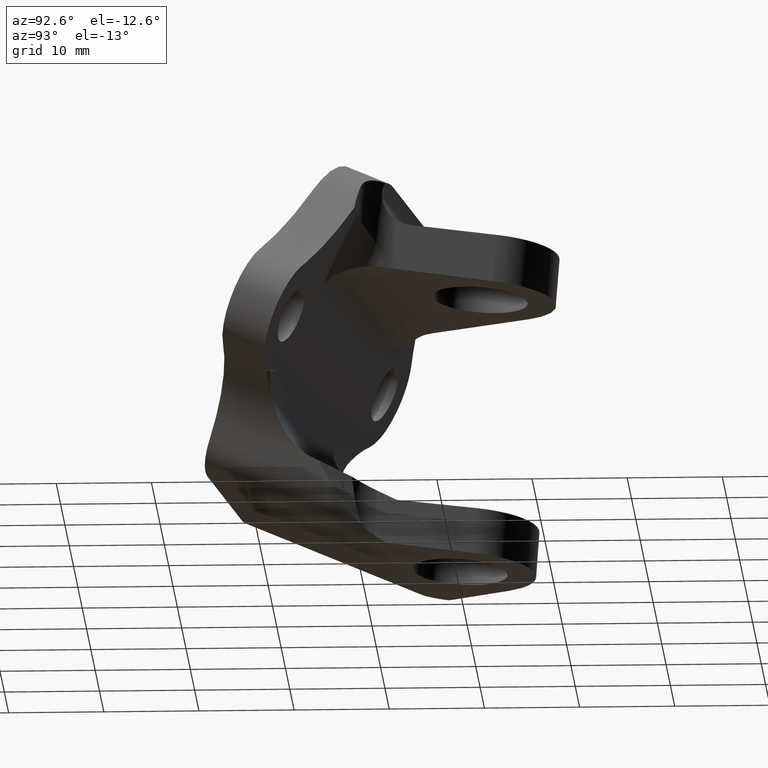
[diagram: clean part render]
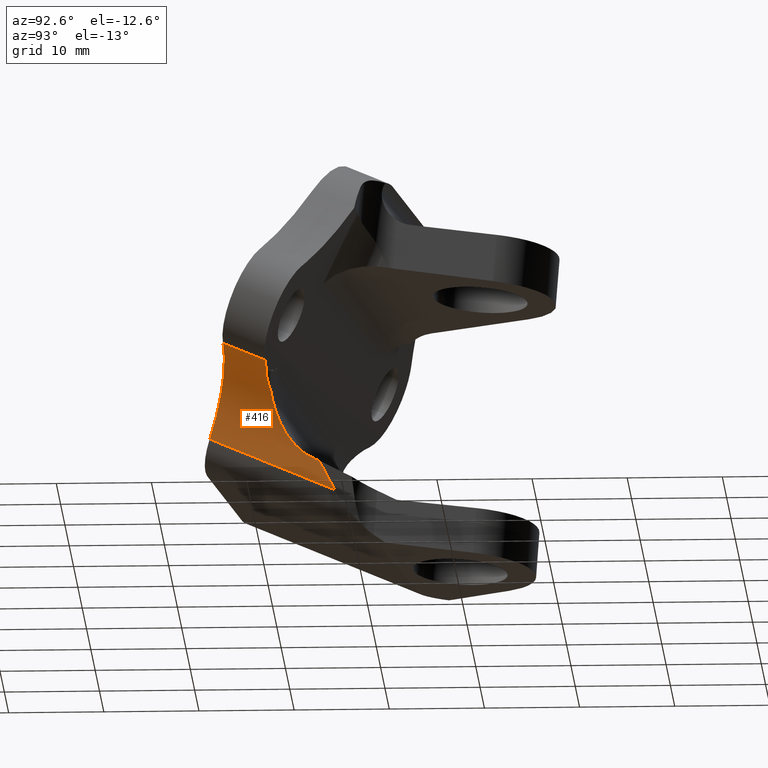
[diagram: same view with one face highlighted and labeled with its STEP entity id]
A machine part, auxiliary view. The second image highlights one B-rep face of the part: STEP entity #416.
In plain terms, the highlighted cylindrical surface (partial cylindrical patch) has radius 15 mm, axis along (0.1825, 0.8911, -0.4155).
Its self-contained STEP definition (entity closure, byte-faithful):
#275=CARTESIAN_POINT('Vertex',(1332.36588304,260.825357216,156.228339215)) ;
#279=CARTESIAN_POINT('Control Point',(1329.3760537,265.48994764,149.438484688)) ;
#280=CARTESIAN_POINT('Control Point',(1329.21356292,264.696636273,149.808428118)) ;
#281=CARTESIAN_POINT('Control Point',(1329.14381322,263.947013349,150.312791655)) ;
#282=CARTESIAN_POINT('Control Point',(1329.17418206,263.279287994,150.934856206)) ;
#283=CARTESIAN_POINT('Control Point',(1329.48861001,262.081481571,152.421390778)) ;
#284=CARTESIAN_POINT('Control Point',(1330.32094291,261.363717171,154.024214917)) ;
#285=CARTESIAN_POINT('Control Point',(1330.90699313,261.113155148,154.839696755)) ;
#286=CARTESIAN_POINT('Control Point',(1331.59673932,260.944573431,155.576214251)) ;
#287=CARTESIAN_POINT('Control Point',(1332.36588301,260.825357285,156.228339094)) ;
#288=CARTESIAN_POINT('Vertex',(1329.3760537,265.48994764,149.438484688)) ;
#343=CARTESIAN_POINT('Vertex',(1334.55410664,260.460823776,157.774104192)) ;
#347=CARTESIAN_POINT('Control Point',(1332.36588303,260.82535722,156.228339218)) ;
#348=CARTESIAN_POINT('Control Point',(1332.83092577,260.642211723,156.691522759)) ;
#349=CARTESIAN_POINT('Control Point',(1333.3563237,260.516205573,157.116427266)) ;
#350=CARTESIAN_POINT('Control Point',(1333.93778396,260.451582303,157.483578372)) ;
#351=CARTESIAN_POINT('Control Point',(1334.55410664,260.460823777,157.774104191)) ;
#360=CARTESIAN_POINT('Axis2P3D Location',(1340.51979634,254.547172637,145.306575299)) ;
#365=CARTESIAN_POINT('Line Origine',(1336.78702777,261.308259236,158.165585636)) ;
#369=CARTESIAN_POINT('Vertex',(1335.6919329,255.961794454,160.658792722)) ;
#371=CARTESIAN_POINT('Vertex',(1336.60451196,260.417181772,158.581120151)) ;
#374=CARTESIAN_POINT('Axis2P3D Location',(1339.42470147,249.200707855,147.799782384)) ;
#378=CARTESIAN_POINT('Vertex',(1326.05604809,254.126840732,152.491511471)) ;
#381=CARTESIAN_POINT('Line Origine',(1327.15114296,259.473305514,149.998304386)) ;
#385=CARTESIAN_POINT('Vertex',(1328.77460095,267.39934115,146.302170769)) ;
#389=CARTESIAN_POINT('Control Point',(1328.77460095,267.39934115,146.302170769)) ;
#390=CARTESIAN_POINT('Control Point',(1328.9814799,266.962056387,147.350785398)) ;
#391=CARTESIAN_POINT('Control Point',(1329.20604396,266.411242059,148.346191297)) ;
#392=CARTESIAN_POINT('Control Point',(1329.43881714,265.796370906,149.29559089)) ;
#393=CARTESIAN_POINT('Vertex',(1329.43881714,265.796370906,149.29559089)) ;
#396=CARTESIAN_POINT('Line Origine',(1328.28095883,260.143482859,151.931691773)) ;
#401=CARTESIAN_POINT('Axis2P3D Location',(1340.33728053,253.656095173,145.722109813)) ;
#361=DIRECTION('Axis2P3D Direction',(0.182515811719,0.891077463515,-0.415534514196)) ;
#362=DIRECTION('Axis2P3D XDirection',(-0.891243558321,0.32840885847,0.312781939104)) ;
#366=DIRECTION('Vector Direction',(0.182515811719,0.891077463515,-0.415534514196)) ;
#375=DIRECTION('Axis2P3D Direction',(0.182515811719,0.891077463515,-0.415534514196)) ;
#382=DIRECTION('Vector Direction',(0.182515811719,0.891077463515,-0.415534514196)) ;
#397=DIRECTION('Vector Direction',(0.182515811719,0.891077463515,-0.415534514196)) ;
#402=DIRECTION('Axis2P3D Direction',(0.182515811719,0.891077463515,-0.415534514196)) ;
#363=AXIS2_PLACEMENT_3D('Cylinder Axis2P3D',#360,#361,#362) ;
#376=AXIS2_PLACEMENT_3D('Circle Axis2P3D',#374,#375,$) ;
#403=AXIS2_PLACEMENT_3D('Circle Axis2P3D',#401,#402,$) ;
#407=ORIENTED_EDGE('',*,*,#373,.F.) ;
#408=ORIENTED_EDGE('',*,*,#380,.F.) ;
#409=ORIENTED_EDGE('',*,*,#387,.T.) ;
#410=ORIENTED_EDGE('',*,*,#395,.T.) ;
#411=ORIENTED_EDGE('',*,*,#400,.F.) ;
#412=ORIENTED_EDGE('',*,*,#290,.T.) ;
#413=ORIENTED_EDGE('',*,*,#352,.T.) ;
#414=ORIENTED_EDGE('',*,*,#405,.F.) ;
#367=VECTOR('Line Direction',#366,1.) ;
#383=VECTOR('Line Direction',#382,1.) ;
#398=VECTOR('Line Direction',#397,1.) ;
#416=ADVANCED_FACE('Hauptk\X2\00F6\X0\rper',(#415),#364,.F.) ;
#278=B_SPLINE_CURVE_WITH_KNOTS('',5,(#279,#280,#281,#282,#283,#284,#285,#286,#287),.UNSPECIFIED.,.F.,.U.,(6,3,6),(0.,6.29525344284,13.4751635546),.UNSPECIFIED.) ;
#346=B_SPLINE_CURVE_WITH_KNOTS('',4,(#347,#348,#349,#350,#351),.UNSPECIFIED.,.F.,.U.,(5,5),(5.46384546685,9.31858513235),.UNSPECIFIED.) ;
#388=B_SPLINE_CURVE_WITH_KNOTS('',3,(#389,#390,#391,#392),.UNSPECIFIED.,.F.,.U.,(4,4),(0.,4.89948681373),.UNSPECIFIED.) ;
#377=CIRCLE('generated circle',#376,15.) ;
#404=CIRCLE('generated circle',#403,15.) ;
#364=CYLINDRICAL_SURFACE('generated cylinder',#363,15.) ;
#290=EDGE_CURVE('',#289,#276,#278,.T.) ;
#352=EDGE_CURVE('',#276,#344,#346,.T.) ;
#373=EDGE_CURVE('',#370,#372,#368,.T.) ;
#380=EDGE_CURVE('',#379,#370,#377,.T.) ;
#387=EDGE_CURVE('',#379,#386,#384,.T.) ;
#395=EDGE_CURVE('',#386,#394,#388,.T.) ;
#400=EDGE_CURVE('',#289,#394,#399,.T.) ;
#405=EDGE_CURVE('',#372,#344,#404,.F.) ;
#406=EDGE_LOOP('',(#407,#408,#409,#410,#411,#412,#413,#414)) ;
#415=FACE_OUTER_BOUND('',#406,.T.) ;
#368=LINE('Line',#365,#367) ;
#384=LINE('Line',#381,#383) ;
#399=LINE('Line',#396,#398) ;
#276=VERTEX_POINT('',#275) ;
#289=VERTEX_POINT('',#288) ;
#344=VERTEX_POINT('',#343) ;
#370=VERTEX_POINT('',#369) ;
#372=VERTEX_POINT('',#371) ;
#379=VERTEX_POINT('',#378) ;
#386=VERTEX_POINT('',#385) ;
#394=VERTEX_POINT('',#393) ;